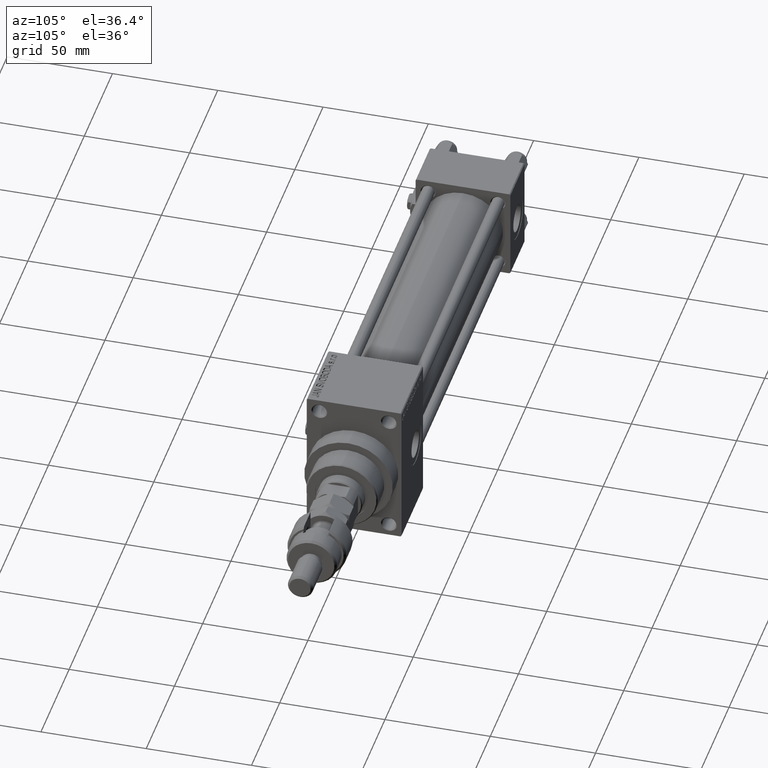
[diagram: clean part render]
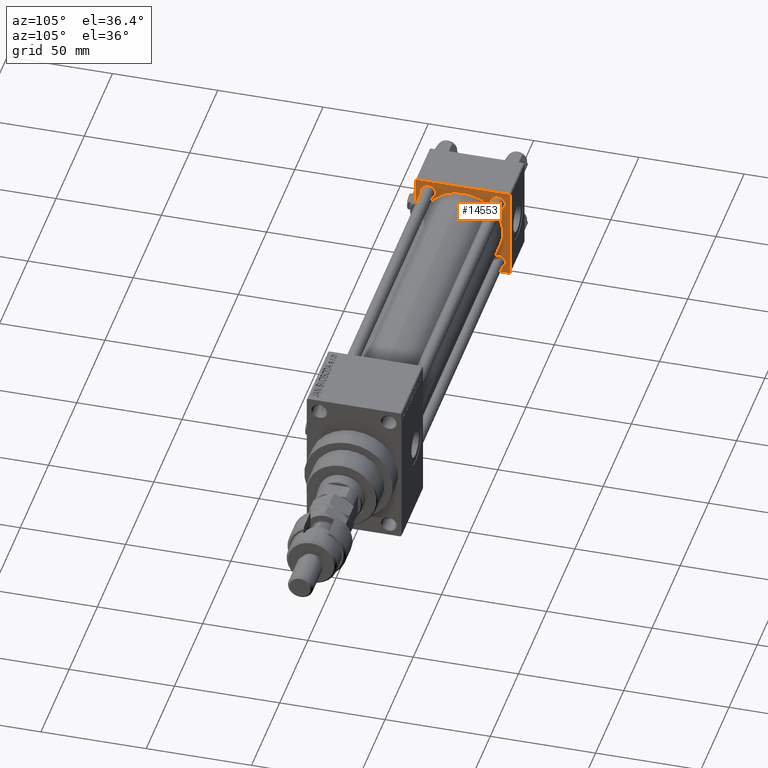
[diagram: same view with one face highlighted and labeled with its STEP entity id]
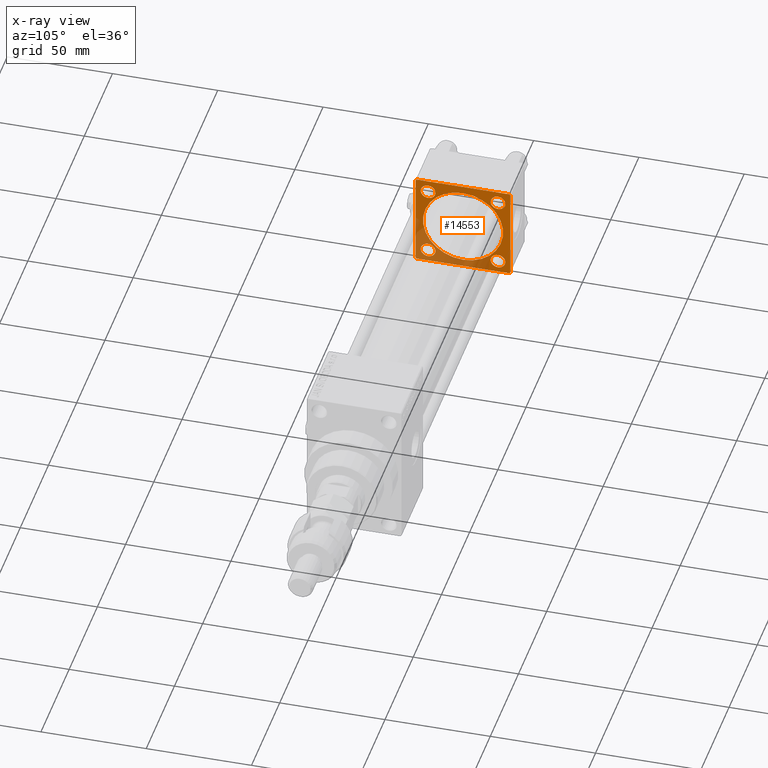
[diagram: x-ray of the same camera — body ghosted, the highlighted face saturated]
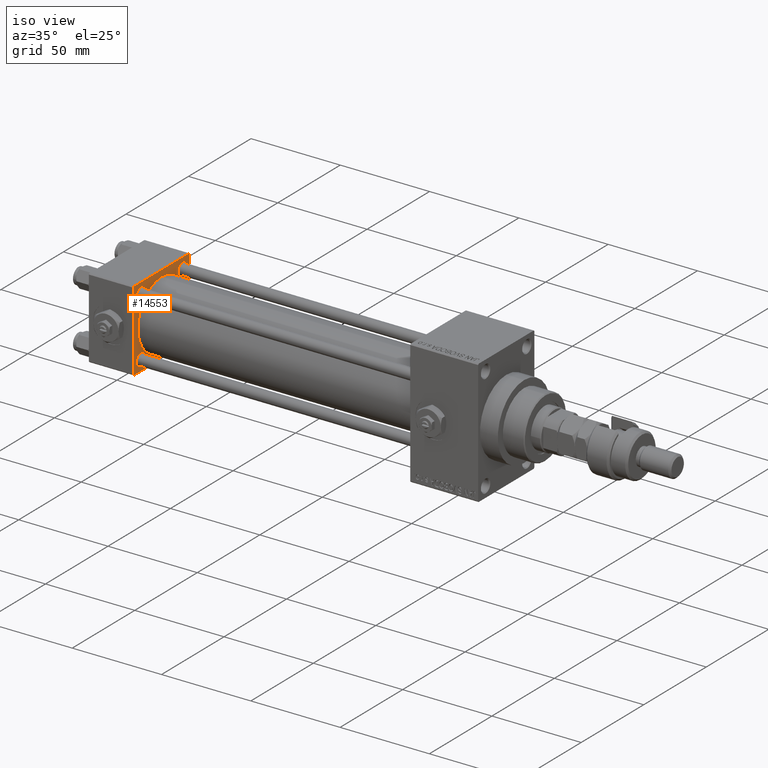
[diagram: same view with one face highlighted and labeled with its STEP entity id]
A machine part, auxiliary view. The second image highlights one B-rep face of the part: STEP entity #14553.
The next image is the same camera in x-ray: the body ghosted, the highlighted face saturated — about 32% of this face is hidden behind the body in this view.
A second angle (iso view) of the same face is appended — the face is thin or edge-on in the first view.
In plain terms, the highlighted planar face has unit normal (-1, 0, 0).
Its self-contained STEP definition (entity closure, byte-faithful):
#456 = ORIENTED_EDGE ( 'NONE', *, *, #21999, .T. ) ;
#648 = CARTESIAN_POINT ( 'NONE',  ( 25.00000000000000000, 16.59999999999999787, -16.60000000000000497 ) ) ;
#1236 = ORIENTED_EDGE ( 'NONE', *, *, #35114, .T. ) ;
#1384 = DIRECTION ( 'NONE',  ( 0.000000000000000000, 0.000000000000000000, 1.000000000000000000 ) ) ;
#2486 = DIRECTION ( 'NONE',  ( -1.000000000000000000, 0.000000000000000000, -0.000000000000000000 ) ) ;
#2710 = VERTEX_POINT ( 'NONE', #15146 ) ;
#3077 = DIRECTION ( 'NONE',  ( 0.000000000000000000, 0.000000000000000000, 1.000000000000000000 ) ) ;
#3170 = EDGE_CURVE ( 'NONE', #14561, #19837, #13539, .T. ) ;
#3316 = DIRECTION ( 'NONE',  ( 0.000000000000000000, 0.000000000000000000, -1.000000000000000000 ) ) ;
#3619 = ORIENTED_EDGE ( 'NONE', *, *, #20399, .T. ) ;
#3930 = AXIS2_PLACEMENT_3D ( 'NONE', #49100, #17091, #45416 ) ;
#4097 = CARTESIAN_POINT ( 'NONE',  ( 25.00000000000000000, 22.50000000000000000, -21.99999999999996803 ) ) ;
#4593 = DIRECTION ( 'NONE',  ( -1.000000000000000000, 0.000000000000000000, -0.000000000000000000 ) ) ;
#5578 = CARTESIAN_POINT ( 'NONE',  ( 25.00000000000000000, -16.59999999999999076, -16.60000000000000853 ) ) ;
#6092 = DIRECTION ( 'NONE',  ( -1.000000000000000000, 0.000000000000000000, -0.000000000000000000 ) ) ;
#6344 = EDGE_LOOP ( 'NONE', ( #6969, #26769 ) ) ;
#6907 = CIRCLE ( 'NONE', #21978, 3.499999999999975131 ) ;
#6969 = ORIENTED_EDGE ( 'NONE', *, *, #9266, .T. ) ;
#7092 = VECTOR ( 'NONE', #3316, 1000.000000000000000 ) ;
#7728 = CARTESIAN_POINT ( 'NONE',  ( 25.00000000000000000, -22.50000000000000000, 22.00000000000000000 ) ) ;
#7751 = CARTESIAN_POINT ( 'NONE',  ( 25.00000000000000000, -16.59999999999999076, 20.10000000000001208 ) ) ;
#7762 = CARTESIAN_POINT ( 'NONE',  ( 25.00000000000000000, -22.50000000000000000, 22.50000000000000000 ) ) ;
#8153 = CARTESIAN_POINT ( 'NONE',  ( 25.00000000000000000, -21.99999999999998579, -22.50000000000000711 ) ) ;
#8553 = VERTEX_POINT ( 'NONE', #20430 ) ;
#8648 = CARTESIAN_POINT ( 'NONE',  ( 24.99999999999999289, -2.602085213965210642E-15, 0.000000000000000000 ) ) ;
#8675 = CARTESIAN_POINT ( 'NONE',  ( 25.00000000000000000, -22.50000000000000000, 22.00000000000000000 ) ) ;
#8997 = DIRECTION ( 'NONE',  ( 0.000000000000000000, 0.000000000000000000, 1.000000000000000000 ) ) ;
#9266 = EDGE_CURVE ( 'NONE', #16620, #39878, #13729, .T. ) ;
#9487 = VERTEX_POINT ( 'NONE', #50059 ) ;
#9740 = CARTESIAN_POINT ( 'NONE',  ( 25.00000000000000000, 21.99999999999999289, -22.49999999999999645 ) ) ;
#9850 = AXIS2_PLACEMENT_3D ( 'NONE', #32904, #24770, #32383 ) ;
#10460 = VECTOR ( 'NONE', #34659, 1000.000000000000114 ) ;
#10766 = DIRECTION ( 'NONE',  ( -0.000000000000000000, 0.7071067811865426878, 0.7071067811865524577 ) ) ;
#11249 = LINE ( 'NONE', #16217, #23011 ) ;
#11389 = EDGE_CURVE ( 'NONE', #44963, #11926, #11249, .T. ) ;
#11766 = ORIENTED_EDGE ( 'NONE', *, *, #13175, .T. ) ;
#11926 = VERTEX_POINT ( 'NONE', #39696 ) ;
#12403 = EDGE_CURVE ( 'NONE', #26880, #43526, #26372, .T. ) ;
#13175 = EDGE_CURVE ( 'NONE', #9487, #8553, #19169, .T. ) ;
#13485 = CIRCLE ( 'NONE', #41150, 3.500000000000006661 ) ;
#13539 = CIRCLE ( 'NONE', #42874, 3.500000000000003109 ) ;
#13729 = CIRCLE ( 'NONE', #17066, 3.499999999999975131 ) ;
#13833 = EDGE_CURVE ( 'NONE', #15394, #32756, #27661, .T. ) ;
#13975 = CARTESIAN_POINT ( 'NONE',  ( 25.00000000000000000, 16.59999999999999787, 16.60000000000000497 ) ) ;
#14553 = ADVANCED_FACE ( 'NONE', ( #23234, #42663, #30856, #14598, #26393, #39241 ), #42139, .F. ) ;
#14561 = VERTEX_POINT ( 'NONE', #46354 ) ;
#14598 = FACE_BOUND ( 'NONE', #6344, .T. ) ;
#15146 = CARTESIAN_POINT ( 'NONE',  ( 24.99999999999999289, -2.602085213965210642E-15, 19.00000000000000000 ) ) ;
#15394 = VERTEX_POINT ( 'NONE', #42776 ) ;
#15700 = EDGE_CURVE ( 'NONE', #39878, #16620, #42404, .T. ) ;
#16217 = CARTESIAN_POINT ( 'NONE',  ( 25.00000000000000000, 22.50000000000000000, -22.49999999999999645 ) ) ;
#16326 = ORIENTED_EDGE ( 'NONE', *, *, #12403, .T. ) ;
#16620 = VERTEX_POINT ( 'NONE', #25418 ) ;
#17066 = AXIS2_PLACEMENT_3D ( 'NONE', #13975, #6092, #29197 ) ;
#17091 = DIRECTION ( 'NONE',  ( -1.000000000000000000, 0.000000000000000000, -0.000000000000000000 ) ) ;
#17807 = ORIENTED_EDGE ( 'NONE', *, *, #33265, .T. ) ;
#18165 = CARTESIAN_POINT ( 'NONE',  ( 25.00000000000000000, 22.50000000000000000, 22.50000000000000355 ) ) ;
#18168 = CARTESIAN_POINT ( 'NONE',  ( 25.00000000000000000, -22.50000000000000000, -21.99999999999997158 ) ) ;
#19169 = LINE ( 'NONE', #22322, #10460 ) ;
#19837 = VERTEX_POINT ( 'NONE', #33726 ) ;
#20399 = EDGE_CURVE ( 'NONE', #37078, #21451, #39957, .T. ) ;
#20430 = CARTESIAN_POINT ( 'NONE',  ( 25.00000000000000000, 21.99999999999999289, 22.50000000000000355 ) ) ;
#20708 = CARTESIAN_POINT ( 'NONE',  ( 25.00000000000000000, 16.59999999999999787, -13.10000000000002807 ) ) ;
#21064 = EDGE_LOOP ( 'NONE', ( #33949, #1236, #42684, #11766, #17807, #46983, #38230, #22540 ) ) ;
#21348 = DIRECTION ( 'NONE',  ( -1.000000000000000000, 0.000000000000000000, -0.000000000000000000 ) ) ;
#21451 = VERTEX_POINT ( 'NONE', #20708 ) ;
#21805 = DIRECTION ( 'NONE',  ( 0.000000000000000000, 0.000000000000000000, 1.000000000000000000 ) ) ;
#21927 = DIRECTION ( 'NONE',  ( 0.000000000000000000, 0.000000000000000000, 1.000000000000000000 ) ) ;
#21978 = AXIS2_PLACEMENT_3D ( 'NONE', #648, #4593, #32410 ) ;
#21999 = EDGE_CURVE ( 'NONE', #19837, #14561, #51709, .T. ) ;
#22322 = CARTESIAN_POINT ( 'NONE',  ( 25.00000000000000000, 21.99999999999999289, 22.50000000000000355 ) ) ;
#22540 = ORIENTED_EDGE ( 'NONE', *, *, #47113, .T. ) ;
#23011 = VECTOR ( 'NONE', #44014, 1000.000000000000000 ) ;
#23089 = VECTOR ( 'NONE', #51298, 999.9999999999998863 ) ;
#23234 = FACE_BOUND ( 'NONE', #46496, .T. ) ;
#23279 = CARTESIAN_POINT ( 'NONE',  ( 25.00000000000000000, 16.59999999999999787, 16.60000000000000497 ) ) ;
#23329 = VECTOR ( 'NONE', #50163, 1000.000000000000000 ) ;
#24430 = EDGE_CURVE ( 'NONE', #2710, #39369, #25886, .T. ) ;
#24770 = DIRECTION ( 'NONE',  ( -1.000000000000000000, 0.000000000000000000, -0.000000000000000000 ) ) ;
#25418 = CARTESIAN_POINT ( 'NONE',  ( 25.00000000000000000, 16.59999999999999787, 13.10000000000002807 ) ) ;
#25886 = CIRCLE ( 'NONE', #35925, 19.00000000000000000 ) ;
#26157 = VECTOR ( 'NONE', #48572, 1000.000000000000000 ) ;
#26312 = AXIS2_PLACEMENT_3D ( 'NONE', #48121, #44949, #8997 ) ;
#26372 = CIRCLE ( 'NONE', #51502, 3.500000000000006661 ) ;
#26393 = FACE_BOUND ( 'NONE', #46205, .T. ) ;
#26769 = ORIENTED_EDGE ( 'NONE', *, *, #15700, .T. ) ;
#26880 = VERTEX_POINT ( 'NONE', #7751 ) ;
#27519 = VERTEX_POINT ( 'NONE', #18168 ) ;
#27661 = LINE ( 'NONE', #7728, #23089 ) ;
#29161 = EDGE_CURVE ( 'NONE', #43526, #26880, #13485, .T. ) ;
#29197 = DIRECTION ( 'NONE',  ( 0.000000000000000000, 0.000000000000000000, 1.000000000000000000 ) ) ;
#29402 = CARTESIAN_POINT ( 'NONE',  ( 25.00000000000000000, -16.59999999999999076, 16.60000000000000853 ) ) ;
#30336 = DIRECTION ( 'NONE',  ( -0.000000000000000000, 0.000000000000000000, 1.000000000000000000 ) ) ;
#30856 = FACE_BOUND ( 'NONE', #41699, .T. ) ;
#31114 = CARTESIAN_POINT ( 'NONE',  ( 25.00000000000000000, 0.000000000000000000, 0.000000000000000000 ) ) ;
#32040 = LINE ( 'NONE', #8153, #26157 ) ;
#32383 = DIRECTION ( 'NONE',  ( 0.000000000000000000, 0.000000000000000000, 1.000000000000000000 ) ) ;
#32410 = DIRECTION ( 'NONE',  ( 0.000000000000000000, 0.000000000000000000, 1.000000000000000000 ) ) ;
#32647 = EDGE_CURVE ( 'NONE', #9487, #48428, #38108, .T. ) ;
#32756 = VERTEX_POINT ( 'NONE', #8675 ) ;
#32904 = CARTESIAN_POINT ( 'NONE',  ( 25.00000000000000000, -16.59999999999999076, -16.60000000000000853 ) ) ;
#33028 = CARTESIAN_POINT ( 'NONE',  ( 24.99999999999999289, -2.752562955852396712E-16, -19.00000000000000000 ) ) ;
#33087 = DIRECTION ( 'NONE',  ( -1.000000000000000000, 0.000000000000000000, -0.000000000000000000 ) ) ;
#33265 = EDGE_CURVE ( 'NONE', #8553, #15394, #41582, .T. ) ;
#33726 = CARTESIAN_POINT ( 'NONE',  ( 25.00000000000000000, -16.59999999999999076, -20.10000000000000853 ) ) ;
#33949 = ORIENTED_EDGE ( 'NONE', *, *, #11389, .F. ) ;
#34049 = AXIS2_PLACEMENT_3D ( 'NONE', #23279, #51598, #3077 ) ;
#34150 = VECTOR ( 'NONE', #34229, 1000.000000000000000 ) ;
#34229 = DIRECTION ( 'NONE',  ( 0.000000000000000000, -1.000000000000000000, -7.709882115452476934E-17 ) ) ;
#34659 = DIRECTION ( 'NONE',  ( 0.000000000000000000, -0.7071067811865474617, 0.7071067811865474617 ) ) ;
#35114 = EDGE_CURVE ( 'NONE', #44963, #48428, #43799, .T. ) ;
#35925 = AXIS2_PLACEMENT_3D ( 'NONE', #8648, #40392, #44594 ) ;
#36922 = EDGE_LOOP ( 'NONE', ( #3619, #39988 ) ) ;
#37078 = VERTEX_POINT ( 'NONE', #39561 ) ;
#37080 = ORIENTED_EDGE ( 'NONE', *, *, #29161, .T. ) ;
#37914 = CARTESIAN_POINT ( 'NONE',  ( 25.00000000000000000, 22.50000000000000000, 22.50000000000000355 ) ) ;
#38108 = LINE ( 'NONE', #18165, #23329 ) ;
#38230 = ORIENTED_EDGE ( 'NONE', *, *, #51446, .T. ) ;
#38595 = ORIENTED_EDGE ( 'NONE', *, *, #24430, .F. ) ;
#39241 = FACE_OUTER_BOUND ( 'NONE', #21064, .T. ) ;
#39369 = VERTEX_POINT ( 'NONE', #33028 ) ;
#39561 = CARTESIAN_POINT ( 'NONE',  ( 25.00000000000000000, 16.59999999999999787, -20.09999999999998010 ) ) ;
#39696 = CARTESIAN_POINT ( 'NONE',  ( 25.00000000000000000, -21.99999999999997158, -22.50000000000000711 ) ) ;
#39878 = VERTEX_POINT ( 'NONE', #50524 ) ;
#39957 = CIRCLE ( 'NONE', #3930, 3.499999999999975131 ) ;
#39988 = ORIENTED_EDGE ( 'NONE', *, *, #43386, .T. ) ;
#40392 = DIRECTION ( 'NONE',  ( 1.000000000000000000, -0.000000000000000000, 0.000000000000000000 ) ) ;
#41150 = AXIS2_PLACEMENT_3D ( 'NONE', #41852, #2486, #21927 ) ;
#41582 = LINE ( 'NONE', #37914, #34150 ) ;
#41699 = EDGE_LOOP ( 'NONE', ( #37080, #16326 ) ) ;
#41852 = CARTESIAN_POINT ( 'NONE',  ( 25.00000000000000000, -16.59999999999999076, 16.60000000000000853 ) ) ;
#42139 = PLANE ( 'NONE',  #44052 ) ;
#42404 = CIRCLE ( 'NONE', #34049, 3.499999999999975131 ) ;
#42663 = FACE_BOUND ( 'NONE', #36922, .T. ) ;
#42684 = ORIENTED_EDGE ( 'NONE', *, *, #32647, .F. ) ;
#42776 = CARTESIAN_POINT ( 'NONE',  ( 25.00000000000000000, -21.99999999999997868, 22.50000000000000000 ) ) ;
#42874 = AXIS2_PLACEMENT_3D ( 'NONE', #5578, #21348, #1384 ) ;
#42926 = DIRECTION ( 'NONE',  ( -1.000000000000000000, 0.000000000000000000, -0.000000000000000000 ) ) ;
#43386 = EDGE_CURVE ( 'NONE', #21451, #37078, #6907, .T. ) ;
#43526 = VERTEX_POINT ( 'NONE', #49168 ) ;
#43716 = LINE ( 'NONE', #7762, #7092 ) ;
#43799 = LINE ( 'NONE', #47502, #50141 ) ;
#44014 = DIRECTION ( 'NONE',  ( 0.000000000000000000, -1.000000000000000000, -2.312964634635742957E-16 ) ) ;
#44052 = AXIS2_PLACEMENT_3D ( 'NONE', #31114, #42926, #30336 ) ;
#44594 = DIRECTION ( 'NONE',  ( 0.000000000000000000, 0.000000000000000000, 1.000000000000000000 ) ) ;
#44949 = DIRECTION ( 'NONE',  ( 1.000000000000000000, -0.000000000000000000, 0.000000000000000000 ) ) ;
#44963 = VERTEX_POINT ( 'NONE', #9740 ) ;
#45416 = DIRECTION ( 'NONE',  ( 0.000000000000000000, 0.000000000000000000, 1.000000000000000000 ) ) ;
#46205 = EDGE_LOOP ( 'NONE', ( #38595, #50615 ) ) ;
#46354 = CARTESIAN_POINT ( 'NONE',  ( 25.00000000000000000, -16.59999999999999076, -13.10000000000000320 ) ) ;
#46496 = EDGE_LOOP ( 'NONE', ( #456, #47724 ) ) ;
#46983 = ORIENTED_EDGE ( 'NONE', *, *, #13833, .T. ) ;
#47113 = EDGE_CURVE ( 'NONE', #27519, #11926, #32040, .T. ) ;
#47502 = CARTESIAN_POINT ( 'NONE',  ( 25.00000000000000000, 22.50000000000000000, -21.99999999999998224 ) ) ;
#47724 = ORIENTED_EDGE ( 'NONE', *, *, #3170, .T. ) ;
#48121 = CARTESIAN_POINT ( 'NONE',  ( 24.99999999999999289, -2.602085213965210642E-15, 0.000000000000000000 ) ) ;
#48428 = VERTEX_POINT ( 'NONE', #4097 ) ;
#48572 = DIRECTION ( 'NONE',  ( 0.000000000000000000, 0.7071067811865426878, -0.7071067811865524577 ) ) ;
#49100 = CARTESIAN_POINT ( 'NONE',  ( 25.00000000000000000, 16.59999999999999787, -16.60000000000000497 ) ) ;
#49168 = CARTESIAN_POINT ( 'NONE',  ( 25.00000000000000000, -16.59999999999999076, 13.10000000000000142 ) ) ;
#50059 = CARTESIAN_POINT ( 'NONE',  ( 25.00000000000000000, 22.50000000000000000, 21.99999999999999645 ) ) ;
#50141 = VECTOR ( 'NONE', #10766, 1000.000000000000000 ) ;
#50163 = DIRECTION ( 'NONE',  ( 0.000000000000000000, 0.000000000000000000, -1.000000000000000000 ) ) ;
#50524 = CARTESIAN_POINT ( 'NONE',  ( 25.00000000000000000, 16.59999999999999787, 20.09999999999998010 ) ) ;
#50615 = ORIENTED_EDGE ( 'NONE', *, *, #50948, .F. ) ;
#50628 = CIRCLE ( 'NONE', #26312, 19.00000000000000000 ) ;
#50948 = EDGE_CURVE ( 'NONE', #39369, #2710, #50628, .T. ) ;
#51298 = DIRECTION ( 'NONE',  ( -0.000000000000000000, -0.7071067811865525687, -0.7071067811865425767 ) ) ;
#51446 = EDGE_CURVE ( 'NONE', #32756, #27519, #43716, .T. ) ;
#51502 = AXIS2_PLACEMENT_3D ( 'NONE', #29402, #33087, #21805 ) ;
#51598 = DIRECTION ( 'NONE',  ( -1.000000000000000000, 0.000000000000000000, -0.000000000000000000 ) ) ;
#51709 = CIRCLE ( 'NONE', #9850, 3.500000000000003109 ) ;